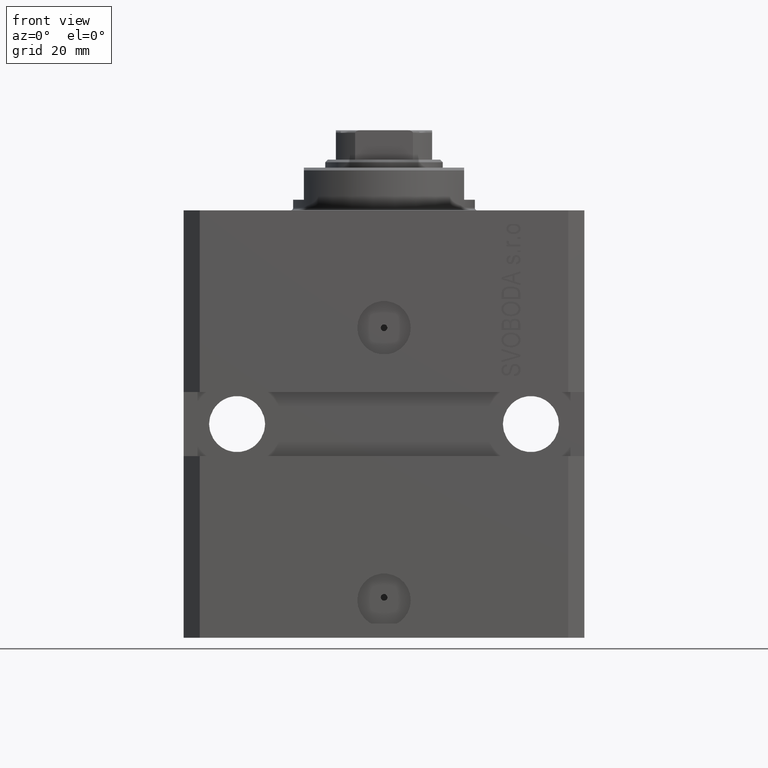
[diagram: clean part render]
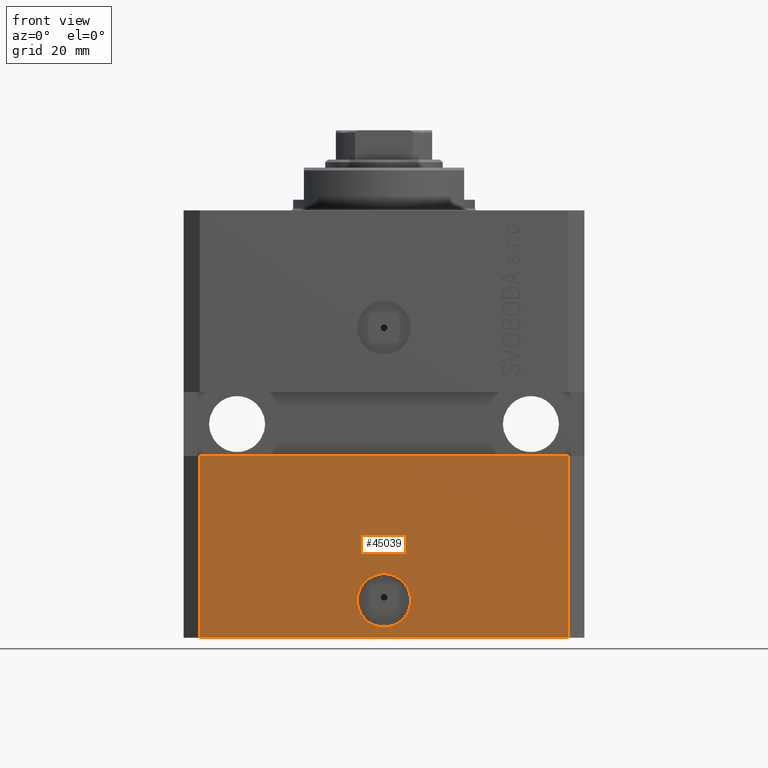
[diagram: same view with one face highlighted and labeled with its STEP entity id]
A machine part, front view. The second image highlights one B-rep face of the part: STEP entity #45039.
In plain terms, the highlighted planar face has unit normal (0, -1, 0).
Its self-contained STEP definition (entity closure, byte-faithful):
#1686 = CARTESIAN_POINT ( 'NONE',  ( 5.000000000000006217, -27.49999999999999645, -73.00000000000000000 ) ) ;
#1892 = CARTESIAN_POINT ( 'NONE',  ( -34.49999999999998579, -27.49999999999999645, -80.00000000000000000 ) ) ;
#1968 = FACE_BOUND ( 'NONE', #20319, .T. ) ;
#2320 = DIRECTION ( 'NONE',  ( 1.000000000000000000, 0.000000000000000000, 0.000000000000000000 ) ) ;
#2637 = VERTEX_POINT ( 'NONE', #1686 ) ;
#4142 = CARTESIAN_POINT ( 'NONE',  ( -37.50000000000000000, -27.50000000000000000, -46.00000000000000000 ) ) ;
#5306 = CARTESIAN_POINT ( 'NONE',  ( -34.49999999999998579, -27.49999999999999645, -80.00000000000000000 ) ) ;
#5636 = CARTESIAN_POINT ( 'NONE',  ( 0.000000000000000000, -27.49999999999999645, -73.00000000000000000 ) ) ;
#5648 = EDGE_CURVE ( 'NONE', #35143, #2637, #38121, .T. ) ;
#8198 = ORIENTED_EDGE ( 'NONE', *, *, #5648, .F. ) ;
#8661 = EDGE_LOOP ( 'NONE', ( #18347, #29379, #16473, #45257 ) ) ;
#8870 = LINE ( 'NONE', #5306, #38297 ) ;
#10865 = LINE ( 'NONE', #46852, #23557 ) ;
#12046 = VERTEX_POINT ( 'NONE', #21890 ) ;
#12552 = DIRECTION ( 'NONE',  ( 1.000000000000000000, 0.000000000000000000, 0.000000000000000000 ) ) ;
#12652 = ORIENTED_EDGE ( 'NONE', *, *, #22285, .F. ) ;
#14152 = CARTESIAN_POINT ( 'NONE',  ( 34.49999999999999289, -27.49999999999999645, -80.00000000000000000 ) ) ;
#15152 = DIRECTION ( 'NONE',  ( 1.176083712526788232E-16, -1.000000000000000000, 0.000000000000000000 ) ) ;
#15257 = DIRECTION ( 'NONE',  ( 0.000000000000000000, 0.000000000000000000, 1.000000000000000000 ) ) ;
#15466 = CARTESIAN_POINT ( 'NONE',  ( -34.49999999999998579, -27.49999999999999645, -80.00000000000000000 ) ) ;
#16473 = ORIENTED_EDGE ( 'NONE', *, *, #25413, .T. ) ;
#17276 = VERTEX_POINT ( 'NONE', #1892 ) ;
#18347 = ORIENTED_EDGE ( 'NONE', *, *, #30461, .F. ) ;
#19259 = DIRECTION ( 'NONE',  ( 0.000000000000000000, -0.000000000000000000, -1.000000000000000000 ) ) ;
#20319 = EDGE_LOOP ( 'NONE', ( #12652, #8198 ) ) ;
#21890 = CARTESIAN_POINT ( 'NONE',  ( 34.49999999999999289, -27.49999999999999645, -80.00000000000000000 ) ) ;
#22285 = EDGE_CURVE ( 'NONE', #2637, #35143, #29614, .T. ) ;
#22676 = DIRECTION ( 'NONE',  ( 0.000000000000000000, 0.000000000000000000, 1.000000000000000000 ) ) ;
#23557 = VECTOR ( 'NONE', #43070, 1000.000000000000000 ) ;
#24063 = AXIS2_PLACEMENT_3D ( 'NONE', #15466, #44356, #19259 ) ;
#25413 = EDGE_CURVE ( 'NONE', #17276, #12046, #10865, .T. ) ;
#26460 = CARTESIAN_POINT ( 'NONE',  ( -34.49999999999998579, -27.50000000000000000, -46.00000000000000000 ) ) ;
#26733 = VECTOR ( 'NONE', #29714, 1000.000000000000000 ) ;
#29379 = ORIENTED_EDGE ( 'NONE', *, *, #40443, .F. ) ;
#29614 = CIRCLE ( 'NONE', #37187, 5.000000000000006217 ) ;
#29714 = DIRECTION ( 'NONE',  ( 1.000000000000000000, 9.251858538542972814E-17, 0.000000000000000000 ) ) ;
#30461 = EDGE_CURVE ( 'NONE', #42040, #44184, #32552, .T. ) ;
#31256 = CARTESIAN_POINT ( 'NONE',  ( 34.49999999999999289, -27.49999999999999289, -46.00000000000000000 ) ) ;
#31480 = EDGE_CURVE ( 'NONE', #12046, #44184, #46594, .T. ) ;
#32552 = LINE ( 'NONE', #4142, #26733 ) ;
#33474 = FACE_OUTER_BOUND ( 'NONE', #8661, .T. ) ;
#34772 = DIRECTION ( 'NONE',  ( 1.176083712526788232E-16, -1.000000000000000000, 0.000000000000000000 ) ) ;
#35143 = VERTEX_POINT ( 'NONE', #46500 ) ;
#37187 = AXIS2_PLACEMENT_3D ( 'NONE', #5636, #34772, #2320 ) ;
#37335 = AXIS2_PLACEMENT_3D ( 'NONE', #44041, #15152, #12552 ) ;
#38121 = CIRCLE ( 'NONE', #37335, 5.000000000000006217 ) ;
#38297 = VECTOR ( 'NONE', #15257, 1000.000000000000000 ) ;
#38865 = VECTOR ( 'NONE', #22676, 1000.000000000000000 ) ;
#40443 = EDGE_CURVE ( 'NONE', #17276, #42040, #8870, .T. ) ;
#41267 = PLANE ( 'NONE',  #24063 ) ;
#42040 = VERTEX_POINT ( 'NONE', #26460 ) ;
#43070 = DIRECTION ( 'NONE',  ( 1.000000000000000000, 0.000000000000000000, 0.000000000000000000 ) ) ;
#44041 = CARTESIAN_POINT ( 'NONE',  ( 0.000000000000000000, -27.49999999999999645, -73.00000000000000000 ) ) ;
#44184 = VERTEX_POINT ( 'NONE', #31256 ) ;
#44356 = DIRECTION ( 'NONE',  ( 0.000000000000000000, -1.000000000000000000, 0.000000000000000000 ) ) ;
#45039 = ADVANCED_FACE ( 'NONE', ( #1968, #33474 ), #41267, .T. ) ;
#45257 = ORIENTED_EDGE ( 'NONE', *, *, #31480, .T. ) ;
#46500 = CARTESIAN_POINT ( 'NONE',  ( -5.000000000000006217, -27.49999999999999645, -73.00000000000000000 ) ) ;
#46594 = LINE ( 'NONE', #14152, #38865 ) ;
#46852 = CARTESIAN_POINT ( 'NONE',  ( -34.49999999999998579, -27.49999999999999645, -80.00000000000000000 ) ) ;